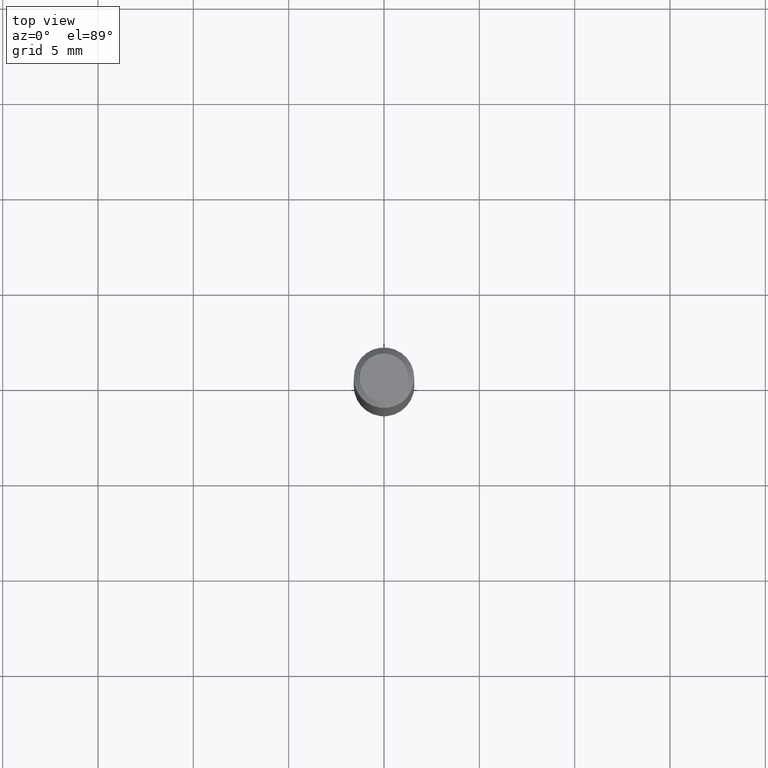
[diagram: clean part render]
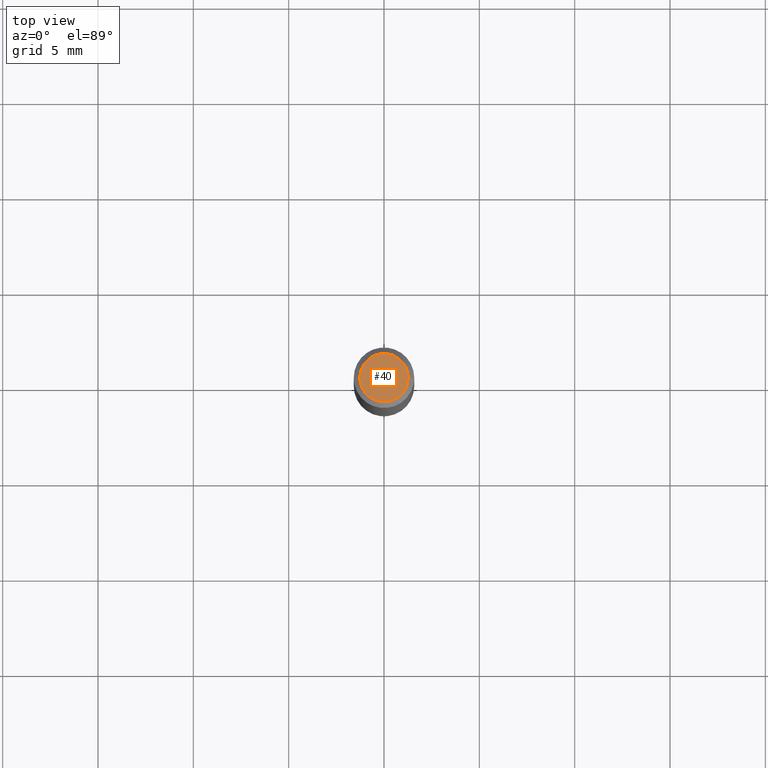
[diagram: same view with one face highlighted and labeled with its STEP entity id]
A machine part, top view. The second image highlights one B-rep face of the part: STEP entity #40.
In plain terms, the highlighted planar face has unit normal (0, -0, -1).
Its self-contained STEP definition (entity closure, byte-faithful):
#34 = ORIENTED_EDGE ( 'NONE', *, *, #246, .T. ) ;
#40 = ADVANCED_FACE ( 'NONE', ( #331 ), #477, .F. ) ;
#47 = EDGE_CURVE ( 'NONE', #440, #191, #363, .T. ) ;
#49 = DIRECTION ( 'NONE',  ( 2.438088387897960049E-29, -3.491481338843145188E-15, -1.000000000000000000 ) ) ;
#60 = CARTESIAN_POINT ( 'NONE',  ( 0.04999999999999999584, -4.077247707424184212E-16, -1.592040838888913461E-18 ) ) ;
#91 = ORIENTED_EDGE ( 'NONE', *, *, #47, .T. ) ;
#104 = AXIS2_PLACEMENT_3D ( 'NONE', #196, #263, #270 ) ;
#165 = CARTESIAN_POINT ( 'NONE',  ( 3.893286209682126177E-47, -5.558580879666067980E-33, -1.592040838891559689E-18 ) ) ;
#191 = VERTEX_POINT ( 'NONE', #330 ) ;
#196 = CARTESIAN_POINT ( 'NONE',  ( 3.893286209682126177E-47, -5.558580879666067980E-33, -1.592040838891559689E-18 ) ) ;
#199 = AXIS2_PLACEMENT_3D ( 'NONE', #165, #325, #469 ) ;
#206 = DIRECTION ( 'NONE',  ( -1.000000000000000000, 6.982962677686265922E-15, -4.876176775795935793E-29 ) ) ;
#216 = CIRCLE ( 'NONE', #104, 0.04999999999999999584 ) ;
#246 = EDGE_CURVE ( 'NONE', #191, #440, #216, .T. ) ;
#263 = DIRECTION ( 'NONE',  ( -2.445468806185136597E-29, 3.491481338843145583E-15, 1.000000000000000000 ) ) ;
#270 = DIRECTION ( 'NONE',  ( 1.000000000000000000, -6.982962677686265922E-15, 4.875957971899673662E-29 ) ) ;
#289 = CARTESIAN_POINT ( 'NONE',  ( 1.946643104841063088E-47, -2.779290439833033990E-33, -7.960204194457798443E-19 ) ) ;
#325 = DIRECTION ( 'NONE',  ( -2.445468806185136597E-29, 3.491481338843145583E-15, 1.000000000000000000 ) ) ;
#330 = CARTESIAN_POINT ( 'NONE',  ( -0.04999999999999999584, 3.709698922520826725E-16, -1.592040838894077649E-18 ) ) ;
#331 = FACE_OUTER_BOUND ( 'NONE', #346, .T. ) ;
#346 = EDGE_LOOP ( 'NONE', ( #34, #91 ) ) ;
#363 = CIRCLE ( 'NONE', #199, 0.04999999999999999584 ) ;
#364 = AXIS2_PLACEMENT_3D ( 'NONE', #289, #49, #206 ) ;
#440 = VERTEX_POINT ( 'NONE', #60 ) ;
#469 = DIRECTION ( 'NONE',  ( 1.000000000000000000, -6.982962677686265922E-15, 4.875957971899673662E-29 ) ) ;
#477 = PLANE ( 'NONE',  #364 ) ;